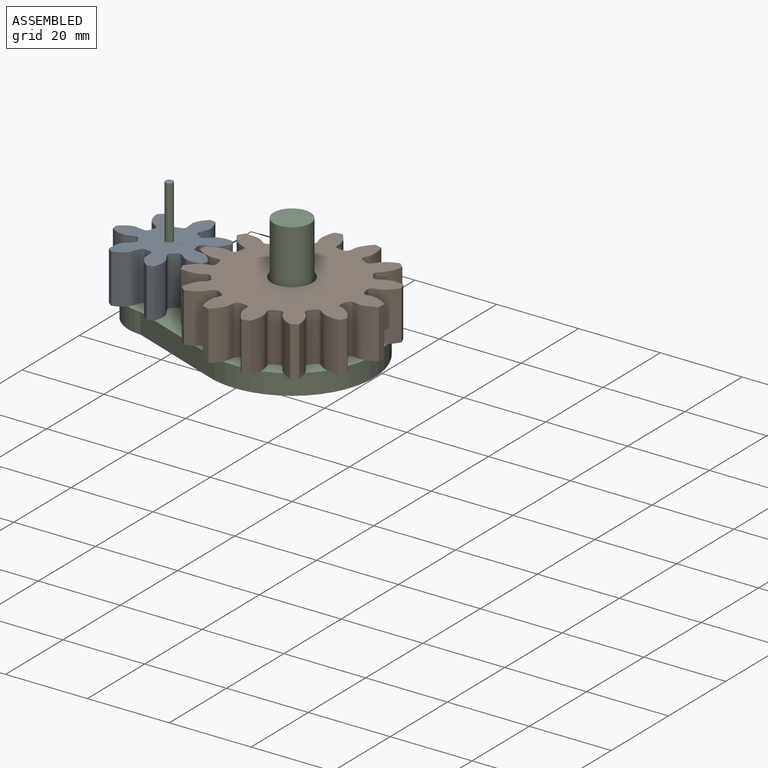
[diagram: assembled view]
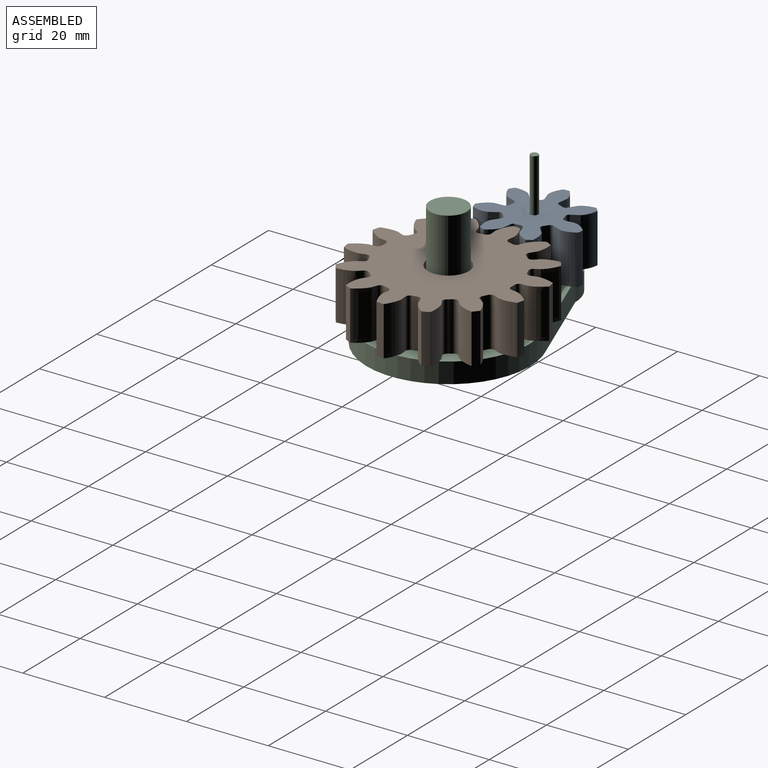
[diagram: assembled view, second angle]
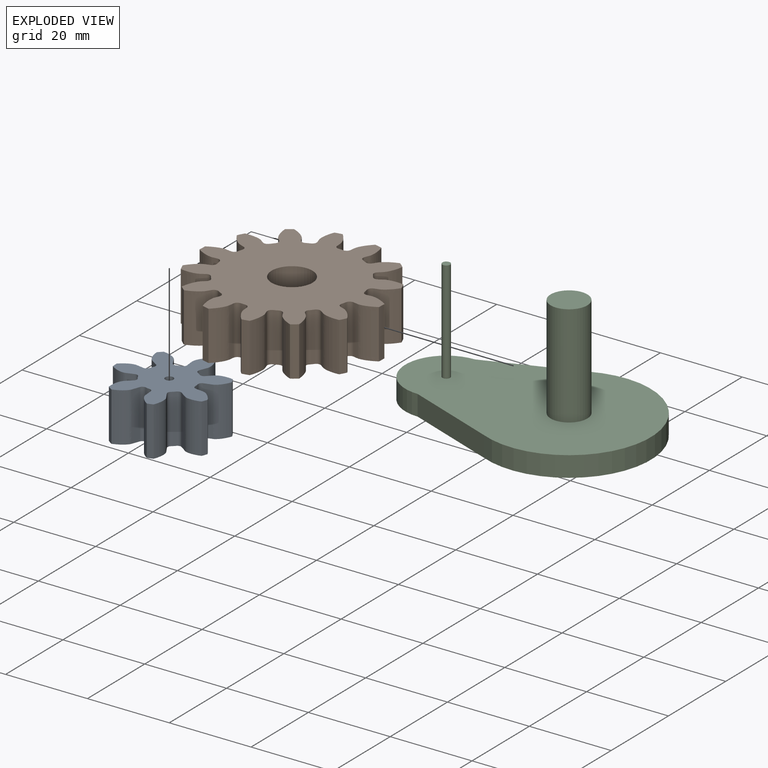
[diagram: exploded view]
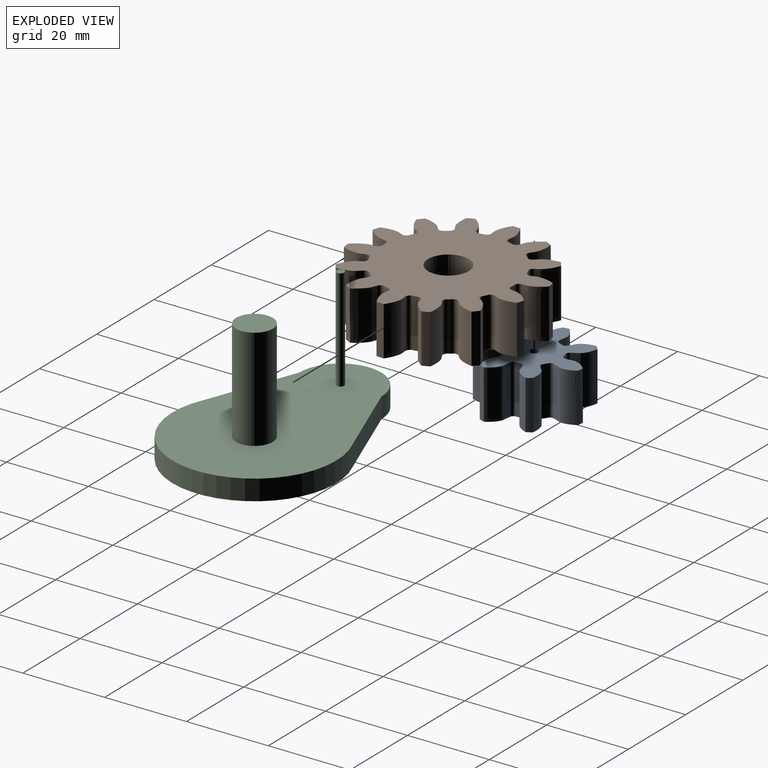
[diagram: exploded view, second angle]
ASSEMBLY  parts=3 mates=2
PART A: 45 faces, bbox 25.1x24.9x12 mm
  f0: extruded ~12x5.27mm, area 73mm2, adj f28,f29,f30,f31
  f1: cylinder r=6.35mm len=12mm, axis (0,0,-1), area 13.3mm2, adj f29,f30,f31,f32
  f2: extruded ~12x5.76mm, area 73mm2, adj f3,f29,f30,f32
  f3: cylinder r=12.7mm len=12mm, axis (0,0,-1), area 17.2mm2, adj f2,f4,f29,f30
  f4: extruded ~12x5.62mm, area 73mm2, adj f3,f29,f30,f33
  f5: cylinder r=6.35mm len=12mm, axis (0,0,-1), area 13.3mm2, adj f29,f30,f33,f34
  f6: extruded ~12x4.85mm, area 73mm2, adj f7,f29,f30,f34
  f7: cylinder r=12.7mm len=12mm, axis (0,0,-1), area 17.2mm2, adj f6,f8,f29,f30
  f8: extruded ~12x4.6mm, area 73mm2, adj f7,f29,f30,f35
  f9: cylinder r=6.35mm len=12mm, axis (0,0,-1), area 13.3mm2, adj f29,f30,f35,f36
  f10: extruded ~12x5.49mm, area 73mm2, adj f11,f29,f30,f36
  f11: cylinder r=12.7mm len=12mm, axis (0,0,-1), area 17.2mm2, adj f10,f12,f29,f30
  f12: extruded ~12x5.79mm, area 73mm2, adj f11,f29,f30,f37
  f13: cylinder r=6.35mm len=12mm, axis (0,0,-1), area 13.3mm2, adj f29,f30,f37,f38
  f14: extruded ~12x5.43mm, area 73mm2, adj f15,f29,f30,f38
  f15: cylinder r=12.7mm len=12mm, axis (0,0,-1), area 17.2mm2, adj f14,f16,f29,f30
  f16: extruded ~12x4.45mm, area 73mm2, adj f15,f29,f30,f39
  f17: cylinder r=6.35mm len=12mm, axis (0,0,-1), area 13.3mm2, adj f29,f30,f39,f40
  f18: extruded ~12x4.95mm, area 73mm2, adj f19,f29,f30,f40
  f19: cylinder r=12.7mm len=12mm, axis (0,0,-1), area 17.2mm2, adj f18,f20,f29,f30
  f20: extruded ~12x5.67mm, area 73mm2, adj f19,f29,f30,f41
  f21: cylinder r=6.35mm len=12mm, axis (0,0,-1), area 13.3mm2, adj f29,f30,f41,f42
  f22: extruded ~12x5.74mm, area 73mm2, adj f23,f29,f30,f42
  f23: cylinder r=12.7mm len=12mm, axis (0,0,-1), area 17.2mm2, adj f22,f24,f29,f30
  f24: extruded ~12x5.16mm, area 73mm2, adj f23,f29,f30,f43
  f25: cylinder r=6.35mm len=12mm, axis (0,0,-1), area 13.3mm2, adj f29,f30,f43,f44
  f26: extruded ~12x4.16mm, area 73mm2, adj f28,f29,f30,f44
  f27: cylinder r=1mm len=12mm, axis (0,0,-1), area 75.4mm2, adj f29,f30
  f28: cylinder r=12.7mm len=12mm, axis (0,0,-1), area 17.2mm2, adj f0,f26,f29,f30
  f29: plane 25.13x24.91mm, normal (0,0,1), area 285.5mm2, adj f0,f1,f2,f3,f4,f5,f6,f7
  f30: plane 25.13x24.91mm, normal (0,0,-1), area 285.5mm2, adj f0,f1,f2,f3,f4,f5,f6,f7
  f31: cylinder r=0.88mm len=12mm, axis (0,0,-1), area 15.3mm2, adj f0,f1,f29,f30
  f32: cylinder r=0.88mm len=12mm, axis (0,0,-1), area 15.3mm2, adj f1,f2,f29,f30
  f33: cylinder r=0.88mm len=12mm, axis (0,0,-1), area 15.3mm2, adj f4,f5,f29,f30
  f34: cylinder r=0.88mm len=12mm, axis (0,0,-1), area 15.3mm2, adj f5,f6,f29,f30
  f35: cylinder r=0.88mm len=12mm, axis (0,0,-1), area 15.3mm2, adj f8,f9,f29,f30
  f36: cylinder r=0.88mm len=12mm, axis (0,0,-1), area 15.3mm2, adj f9,f10,f29,f30
  f37: cylinder r=0.88mm len=12mm, axis (0,0,-1), area 15.3mm2, adj f12,f13,f29,f30
  f38: cylinder r=0.88mm len=12mm, axis (0,0,-1), area 15.3mm2, adj f13,f14,f29,f30
  f39: cylinder r=0.88mm len=12mm, axis (0,0,-1), area 15.3mm2, adj f16,f17,f29,f30
  f40: cylinder r=0.88mm len=12mm, axis (0,0,-1), area 15.3mm2, adj f17,f18,f29,f30
  f41: cylinder r=0.88mm len=12mm, axis (0,0,-1), area 15.3mm2, adj f20,f21,f29,f30
  f42: cylinder r=0.88mm len=12mm, axis (0,0,-1), area 15.3mm2, adj f21,f22,f29,f30
  f43: cylinder r=0.88mm len=12mm, axis (0,0,-1), area 15.3mm2, adj f24,f25,f29,f30
  f44: cylinder r=0.88mm len=12mm, axis (0,0,-1), area 15.3mm2, adj f25,f26,f29,f30
PART B: 87 faces, bbox 45.2x45x12 mm
  f0: extruded ~12x4.64mm, area 69mm2, adj f56,f57,f58,f59
  f1: cylinder r=16.22mm len=12mm, axis (0,0,-1), area 14.1mm2, adj f57,f58,f59,f60
  f2: extruded ~12x5.58mm, area 69mm2, adj f3,f57,f58,f60
  f3: cylinder r=22.57mm len=12mm, axis (0,0,-1), area 21.8mm2, adj f2,f4,f57,f58
  f4: extruded ~12x4.83mm, area 69mm2, adj f3,f57,f58,f61
  f5: cylinder r=16.22mm len=12mm, axis (0,0,-1), area 14.1mm2, adj f57,f58,f61,f62
  f6: extruded ~12x5.2mm, area 69mm2, adj f7,f57,f58,f62
  f7: cylinder r=22.57mm len=12mm, axis (0,0,-1), area 21.8mm2, adj f6,f8,f57,f58
  f8: extruded ~12x5.58mm, area 69mm2, adj f7,f57,f58,f63
  f9: cylinder r=16.22mm len=12mm, axis (0,0,-1), area 14.1mm2, adj f57,f58,f63,f64
  f10: extruded ~12x4.13mm, area 69mm2, adj f11,f57,f58,f64
  f11: cylinder r=22.57mm len=12mm, axis (0,0,-1), area 21.8mm2, adj f10,f12,f57,f58
  f12: extruded ~12x5.22mm, area 69mm2, adj f11,f57,f58,f65
  f13: cylinder r=16.22mm len=12mm, axis (0,0,-1), area 14.1mm2, adj f57,f58,f65,f66
  f14: extruded ~12x5.36mm, area 69mm2, adj f15,f57,f58,f66
  f15: cylinder r=22.57mm len=12mm, axis (0,0,-1), area 21.8mm2, adj f14,f16,f57,f58
  f16: extruded ~12x4.08mm, area 69mm2, adj f15,f57,f58,f67
  f17: cylinder r=16.22mm len=12mm, axis (0,0,-1), area 14.1mm2, adj f57,f58,f67,f68
  f18: extruded ~12x5.53mm, area 69mm2, adj f19,f57,f58,f68
  f19: cylinder r=22.57mm len=12mm, axis (0,0,-1), area 21.8mm2, adj f18,f20,f57,f58
  f20: extruded ~12x5.34mm, area 69mm2, adj f19,f57,f58,f69
  f21: cylinder r=16.22mm len=12mm, axis (0,0,-1), area 14.1mm2, adj f57,f58,f69,f70
  f22: extruded ~12x4.6mm, area 69mm2, adj f23,f57,f58,f70
  f23: cylinder r=22.57mm len=12mm, axis (0,0,-1), area 21.8mm2, adj f22,f24,f57,f58
  f24: extruded ~12x5.54mm, area 69mm2, adj f23,f57,f58,f71
  f25: cylinder r=16.22mm len=12mm, axis (0,0,-1), area 14.1mm2, adj f57,f58,f71,f72
  f26: extruded ~12x4.86mm, area 69mm2, adj f27,f57,f58,f72
  f27: cylinder r=22.57mm len=12mm, axis (0,0,-1), area 21.8mm2, adj f26,f28,f57,f58
  f28: extruded ~12x4.64mm, area 69mm2, adj f27,f57,f58,f73
  f29: cylinder r=16.22mm len=12mm, axis (0,0,-1), area 14.1mm2, adj f57,f58,f73,f74
  f30: extruded ~12x5.58mm, area 69mm2, adj f31,f57,f58,f74
  f31: cylinder r=22.57mm len=12mm, axis (0,0,-1), area 21.8mm2, adj f30,f32,f57,f58
  f32: extruded ~12x4.83mm, area 69mm2, adj f31,f57,f58,f75
  f33: cylinder r=16.22mm len=12mm, axis (0,0,-1), area 14.1mm2, adj f57,f58,f75,f76
  f34: extruded ~12x5.2mm, area 69mm2, adj f35,f57,f58,f76
  f35: cylinder r=22.57mm len=12mm, axis (0,0,-1), area 21.8mm2, adj f34,f36,f57,f58
  f36: extruded ~12x5.58mm, area 69mm2, adj f35,f57,f58,f77
  f37: cylinder r=16.22mm len=12mm, axis (0,0,-1), area 14.1mm2, adj f57,f58,f77,f78
  f38: extruded ~12x4.13mm, area 69mm2, adj f39,f57,f58,f78
  f39: cylinder r=22.57mm len=12mm, axis (0,0,-1), area 21.8mm2, adj f38,f40,f57,f58
  f40: extruded ~12x5.22mm, area 69mm2, adj f39,f57,f58,f79
  f41: cylinder r=16.22mm len=12mm, axis (0,0,-1), area 14.1mm2, adj f57,f58,f79,f80
  f42: extruded ~12x5.36mm, area 69mm2, adj f43,f57,f58,f80
  f43: cylinder r=22.57mm len=12mm, axis (0,0,-1), area 21.8mm2, adj f42,f44,f57,f58
  f44: extruded ~12x4.08mm, area 69mm2, adj f43,f57,f58,f81
  f45: cylinder r=16.22mm len=12mm, axis (0,0,-1), area 14.1mm2, adj f57,f58,f81,f82
  f46: extruded ~12x5.53mm, area 69mm2, adj f47,f57,f58,f82
  f47: cylinder r=22.57mm len=12mm, axis (0,0,-1), area 21.8mm2, adj f46,f48,f57,f58
  f48: extruded ~12x5.34mm, area 69mm2, adj f47,f57,f58,f83
  f49: cylinder r=16.22mm len=12mm, axis (0,0,-1), area 14.1mm2, adj f57,f58,f83,f84
  f50: extruded ~12x4.6mm, area 69mm2, adj f51,f57,f58,f84
  f51: cylinder r=22.57mm len=12mm, axis (0,0,-1), area 21.8mm2, adj f50,f52,f57,f58
  f52: extruded ~12x5.54mm, area 69mm2, adj f51,f57,f58,f85
  f53: cylinder r=16.22mm len=12mm, axis (0,0,-1), area 14.1mm2, adj f57,f58,f85,f86
  f54: extruded ~12x4.86mm, area 69mm2, adj f56,f57,f58,f86
  f55: cylinder r=5mm len=12mm, axis (0,0,-1), area 377mm2, adj f57,f58
  f56: cylinder r=22.57mm len=12mm, axis (0,0,-1), area 21.8mm2, adj f0,f54,f57,f58
  f57: plane 45.2x44.96mm, normal (0,0,1), area 1107.3mm2, adj f0,f1,f2,f3,f4,f5,f6,f7
  f58: plane 45.2x44.96mm, normal (0,0,-1), area 1107.3mm2, adj f0,f1,f2,f3,f4,f5,f6,f7
  f59: cylinder r=1.05mm len=12mm, axis (0,0,-1), area 19.1mm2, adj f0,f1,f57,f58
  f60: cylinder r=1.05mm len=12mm, axis (0,0,-1), area 19.1mm2, adj f1,f2,f57,f58
  f61: cylinder r=1.05mm len=12mm, axis (0,0,-1), area 19.1mm2, adj f4,f5,f57,f58
  f62: cylinder r=1.05mm len=12mm, axis (0,0,-1), area 19.1mm2, adj f5,f6,f57,f58
  f63: cylinder r=1.05mm len=12mm, axis (0,0,-1), area 19.1mm2, adj f8,f9,f57,f58
  f64: cylinder r=1.05mm len=12mm, axis (0,0,-1), area 19.1mm2, adj f9,f10,f57,f58
  f65: cylinder r=1.05mm len=12mm, axis (0,0,-1), area 19.1mm2, adj f12,f13,f57,f58
  f66: cylinder r=1.05mm len=12mm, axis (0,0,-1), area 19.1mm2, adj f13,f14,f57,f58
  f67: cylinder r=1.05mm len=12mm, axis (0,0,-1), area 19.1mm2, adj f16,f17,f57,f58
  f68: cylinder r=1.05mm len=12mm, axis (0,0,-1), area 19.1mm2, adj f17,f18,f57,f58
  f69: cylinder r=1.05mm len=12mm, axis (0,0,-1), area 19.1mm2, adj f20,f21,f57,f58
  f70: cylinder r=1.05mm len=12mm, axis (0,0,-1), area 19.1mm2, adj f21,f22,f57,f58
  f71: cylinder r=1.05mm len=12mm, axis (0,0,-1), area 19.1mm2, adj f24,f25,f57,f58
  f72: cylinder r=1.05mm len=12mm, axis (0,0,-1), area 19.1mm2, adj f25,f26,f57,f58
  f73: cylinder r=1.05mm len=12mm, axis (0,0,-1), area 19.1mm2, adj f28,f29,f57,f58
  f74: cylinder r=1.05mm len=12mm, axis (0,0,-1), area 19.1mm2, adj f29,f30,f57,f58
  f75: cylinder r=1.05mm len=12mm, axis (0,0,-1), area 19.1mm2, adj f32,f33,f57,f58
  f76: cylinder r=1.05mm len=12mm, axis (0,0,-1), area 19.1mm2, adj f33,f34,f57,f58
  f77: cylinder r=1.05mm len=12mm, axis (0,0,-1), area 19.1mm2, adj f36,f37,f57,f58
  f78: cylinder r=1.05mm len=12mm, axis (0,0,-1), area 19.1mm2, adj f37,f38,f57,f58
  f79: cylinder r=1.05mm len=12mm, axis (0,0,-1), area 19.1mm2, adj f40,f41,f57,f58
  f80: cylinder r=1.05mm len=12mm, axis (0,0,-1), area 19.1mm2, adj f41,f42,f57,f58
  f81: cylinder r=1.05mm len=12mm, axis (0,0,-1), area 19.1mm2, adj f44,f45,f57,f58
  f82: cylinder r=1.05mm len=12mm, axis (0,0,-1), area 19.1mm2, adj f45,f46,f57,f58
  f83: cylinder r=1.05mm len=12mm, axis (0,0,-1), area 19.1mm2, adj f48,f49,f57,f58
  f84: cylinder r=1.05mm len=12mm, axis (0,0,-1), area 19.1mm2, adj f49,f50,f57,f58
  f85: cylinder r=1.05mm len=12mm, axis (0,0,-1), area 19.1mm2, adj f52,f53,f57,f58
  f86: cylinder r=1.05mm len=12mm, axis (0,0,-1), area 19.1mm2, adj f53,f54,f57,f58
PART C: 10 faces, bbox 60x40x30 mm
  f0: cylinder r=10mm len=20mm, axis (0,0,1), area 157.1mm2, adj f1,f3,f4,f5
  f1: plane 21.87x8.28mm, normal (-0.35,-0.94,0), area 116.9mm2, adj f0,f2,f4,f5
  f2: cylinder r=20mm len=40mm, axis (0,0,1), area 397.8mm2, adj f1,f3,f4,f5
  f3: plane 21.87x8.28mm, normal (-0.35,0.94,0), area 116.9mm2, adj f0,f2,f4,f5
  f4: plane 60x40mm, normal (0,0,-1), area 1719.7mm2, adj f0,f1,f2,f3
  f5: plane 60x40mm, normal (0,0,1), area 1653.3mm2, adj f0,f1,f2,f3,f6,f8
  f6: cylinder r=4.5mm len=25mm, axis (0,0,-1), area 706.9mm2, adj f5,f7
  f7: plane 9x9mm, normal (0,0,1), area 63.6mm2, adj f6
  f8: cylinder r=0.95mm len=25mm, axis (0,0,-1), area 149.2mm2, adj f5,f9
  f9: plane 1.9x1.9mm, normal (0,0,1), area 2.8mm2, adj f8
PLACE A rot(axis=(0,0,1),150.3deg) t=(-56.05,14.89,0)mm
PLACE B rot(axis=(0,0,1),104.9deg) t=(0,0,0)mm
PLACE C at identity fixed
MATE revolute B.f3 <-> C.f6  axis (0,0,-1) through (0,0,0)mm
MATE revolute A.f3 <-> C.f0  axis (0,0,-1) through (-30,0,0)mm
